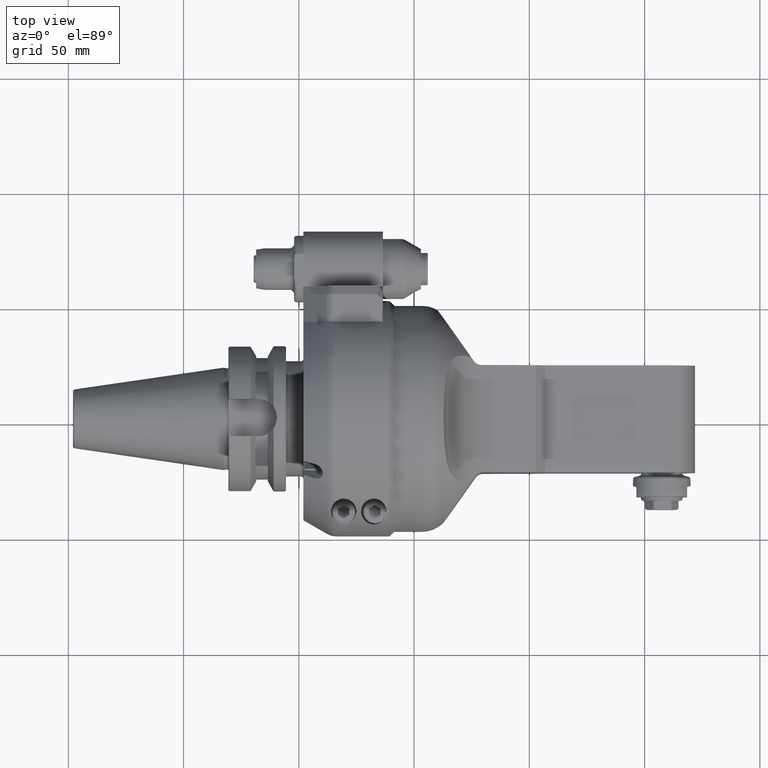
[diagram: clean part render]
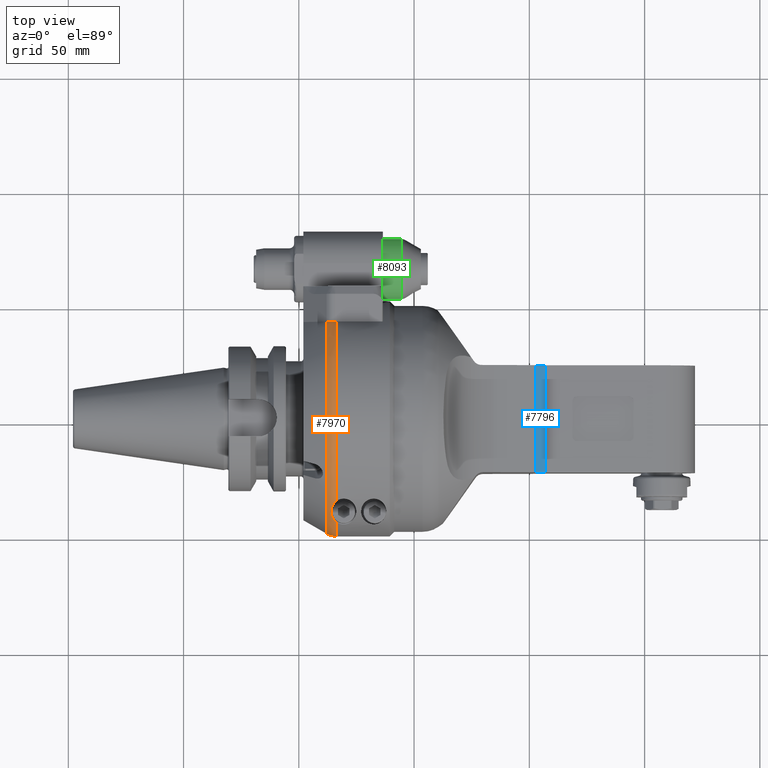
[diagram: same view with three faces highlighted in distinct colors, each labeled with its STEP entity id]
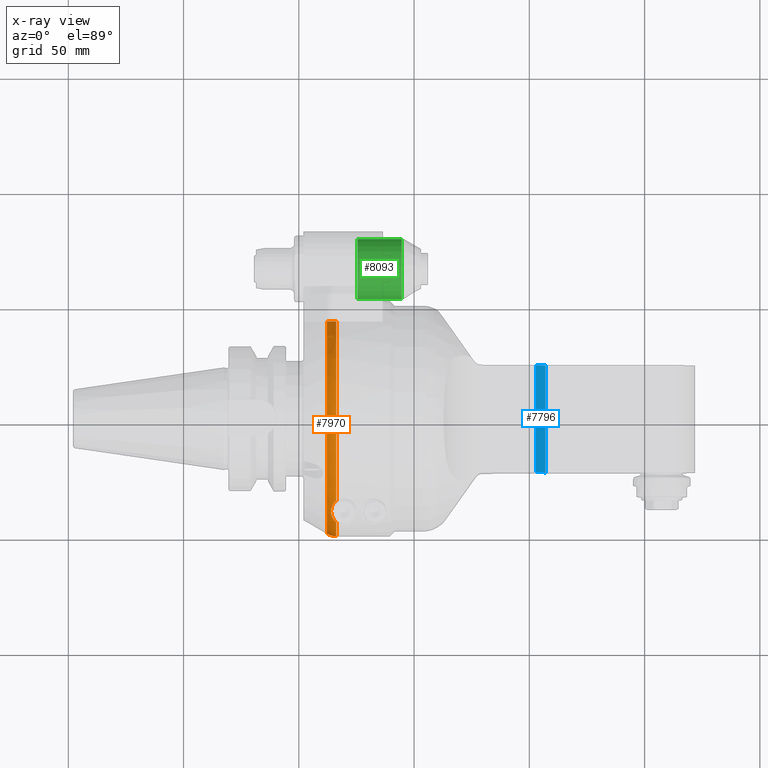
[diagram: x-ray of the same camera — body ghosted, the three highlighted faces saturated]
A machine part, top view with three faces highlighted in distinct colors.
The next image is the same camera in x-ray (body ghosted, the three faces saturated) — at least one of them is partly hidden behind the body in this view.
Their STEP definitions:

[orange] entity #7970 — the highlighted toroidal blend (fillet) surface has major radius 43 mm and minor (blend) radius 8 mm.
#166=TOROIDAL_SURFACE('',#8705,1.69291338582677,0.31496062992126);
#298=B_SPLINE_CURVE_WITH_KNOTS('',3,(#12567,#12568,#12569,#12570,#12571,
#12572,#12573,#12574,#12575,#12576),.UNSPECIFIED.,.F.,.F.,(4,2,2,2,4),(-9.68559804021147,
-9.63577634006454,-9.4843525606202,-9.37005770955715,-9.2557628584941),
 .UNSPECIFIED.);
#313=B_SPLINE_CURVE_WITH_KNOTS('',3,(#12886,#12887,#12888,#12889,#12890,
#12891,#12892,#12893),.UNSPECIFIED.,.F.,.F.,(4,2,2,4),(4.34441023881693,
4.44441523838835,4.59248867498487,4.74056211158139),.UNSPECIFIED.);
#316=B_SPLINE_CURVE_WITH_KNOTS('',3,(#12925,#12926,#12927,#12928,#12929,
#12930,#12931,#12932,#12933,#12934,#12935,#12936,#12937,#12938,#12939,#12940),
 .UNSPECIFIED.,.F.,.F.,(4,3,3,3,3,4),(-9.34472443709596,-9.15576581563747,
-8.53592281537668,-8.19749167718073,-7.91960616501336,-7.85473194545352),
 .UNSPECIFIED.);
#759=CIRCLE('',#8659,2.00787401574803);
#760=CIRCLE('',#8660,2.00787401574803);
#781=CIRCLE('',#8702,1.96567729253071);
#1181=FACE_OUTER_BOUND('',#1712,.T.);
#1712=EDGE_LOOP('',(#6079,#6080,#6081,#6082,#6083,#6084));
#3461=VERTEX_POINT('',#12532);
#3471=VERTEX_POINT('',#12563);
#3476=VERTEX_POINT('',#12587);
#3478=VERTEX_POINT('',#12596);
#3479=VERTEX_POINT('',#12623);
#3519=VERTEX_POINT('',#12874);
#4380=EDGE_CURVE('',#3471,#3461,#298,.T.);
#4386=EDGE_CURVE('',#3476,#3461,#759,.T.);
#4389=EDGE_CURVE('',#3479,#3478,#760,.T.);
#4452=EDGE_CURVE('',#3519,#3479,#313,.T.);
#4455=EDGE_CURVE('',#3471,#3519,#781,.T.);
#4460=EDGE_CURVE('',#3478,#3476,#316,.T.);
#6079=ORIENTED_EDGE('',*,*,#4455,.T.);
#6080=ORIENTED_EDGE('',*,*,#4452,.T.);
#6081=ORIENTED_EDGE('',*,*,#4389,.T.);
#6082=ORIENTED_EDGE('',*,*,#4460,.T.);
#6083=ORIENTED_EDGE('',*,*,#4386,.T.);
#6084=ORIENTED_EDGE('',*,*,#4380,.F.);
#7970=ADVANCED_FACE('',(#1181),#166,.T.);
#8659=AXIS2_PLACEMENT_3D('',#12588,#10077,#10078);
#8660=AXIS2_PLACEMENT_3D('',#12624,#10079,#10080);
#8702=AXIS2_PLACEMENT_3D('',#12899,#10193,#10194);
#8705=AXIS2_PLACEMENT_3D('',#12924,#10199,#10200);
#10077=DIRECTION('center_axis',(-1.,0.,0.));
#10078=DIRECTION('ref_axis',(0.,-0.711205879844998,0.702983781088798));
#10079=DIRECTION('center_axis',(-1.,0.,0.));
#10080=DIRECTION('ref_axis',(0.,-0.999567380468613,0.0294117647058804));
#10193=DIRECTION('center_axis',(1.,0.,0.));
#10194=DIRECTION('ref_axis',(0.,0.836200730225418,0.548423503116412));
#10199=DIRECTION('center_axis',(1.,0.,0.));
#10200=DIRECTION('ref_axis',(0.,-1.,0.));
#12532=CARTESIAN_POINT('',(-1.46582877195157,1.64370078740157,1.15317205334331));
#12563=CARTESIAN_POINT('',(-1.6233090869122,1.64370078740157,1.07802362676614));
#12567=CARTESIAN_POINT('Ctrl Pts',(-1.62330908691211,1.64370078740157,1.07802362676605));
#12568=CARTESIAN_POINT('Ctrl Pts',(-1.61844479811732,1.64370078740157,1.08314448396696));
#12569=CARTESIAN_POINT('Ctrl Pts',(-1.6133701282731,1.64370078740157,1.0881430546122));
#12570=CARTESIAN_POINT('Ctrl Pts',(-1.59217617864933,1.64370078740157,1.10752711173896));
#12571=CARTESIAN_POINT('Ctrl Pts',(-1.57453648292978,1.64370078740157,1.12016528790334));
#12572=CARTESIAN_POINT('Ctrl Pts',(-1.54377652648948,1.64370078740157,1.13659168315592));
#12573=CARTESIAN_POINT('Ctrl Pts',(-1.52857723870552,1.64370078740157,1.14286646758654));
#12574=CARTESIAN_POINT('Ctrl Pts',(-1.49710606867146,1.64370078740157,1.15116820495609));
#12575=CARTESIAN_POINT('Ctrl Pts',(-1.48082809623806,1.64370078740157,1.15317205334311));
#12576=CARTESIAN_POINT('Ctrl Pts',(-1.46582877195157,1.64370078740157,1.15317205334311));
#12587=CARTESIAN_POINT('',(-1.46582877195157,-1.4280118059878,1.41150286754055));
#12588=CARTESIAN_POINT('Origin',(-1.46582877195157,0.,0.));
#12596=CARTESIAN_POINT('',(-1.46582877195157,-1.77841742887008,0.932088789658661));
#12623=CARTESIAN_POINT('',(-1.46582877256313,-2.00700537025509,0.0590551173350001));
#12624=CARTESIAN_POINT('Origin',(-1.46582877195157,0.,0.));
#12874=CARTESIAN_POINT('',(-1.623309397991,-1.96478981189492,0.0590551208106137));
#12886=CARTESIAN_POINT('Ctrl Pts',(-1.62330939803413,-1.96478981196958,
0.0590551181102362));
#12887=CARTESIAN_POINT('Ctrl Pts',(-1.61102216001113,-1.97188707452034,
0.0590551181102362));
#12888=CARTESIAN_POINT('Ctrl Pts',(-1.59846317367425,-1.97800497155514,
0.0590551181102362));
#12889=CARTESIAN_POINT('Ctrl Pts',(-1.56838622305118,-1.99046630575466,
0.0590551181102362));
#12890=CARTESIAN_POINT('Ctrl Pts',(-1.54804600044294,-1.99681805304159,
0.0590551181102362));
#12891=CARTESIAN_POINT('Ctrl Pts',(-1.50648338128639,-2.00508759327977,
0.0590551181102362));
#12892=CARTESIAN_POINT('Ctrl Pts',(-1.48526098155487,-2.00700537023226,
0.0590551181102362));
#12893=CARTESIAN_POINT('Ctrl Pts',(-1.46582877195157,-2.00700537023226,
0.0590551181102362));
#12899=CARTESIAN_POINT('Origin',(-1.6233090869122,0.,0.));
#12924=CARTESIAN_POINT('Origin',(-1.46582877195157,0.,0.));
#12925=CARTESIAN_POINT('Ctrl Pts',(-1.46582877195168,-1.77841742887009,
0.932088789658589));
#12926=CARTESIAN_POINT('Ctrl Pts',(-1.48054930341502,-1.76772621834394,
0.952487527789942));
#12927=CARTESIAN_POINT('Ctrl Pts',(-1.4937797911866,-1.75526858026799,0.973181217539487));
#12928=CARTESIAN_POINT('Ctrl Pts',(-1.50518754077787,-1.74152735435471,
0.99435012990676));
#12929=CARTESIAN_POINT('Ctrl Pts',(-1.54260850457565,-1.69645186305608,
1.06379074104538));
#12930=CARTESIAN_POINT('Ctrl Pts',(-1.55871549308936,-1.64048402965276,
1.13698499966801));
#12931=CARTESIAN_POINT('Ctrl Pts',(-1.5544522691704,-1.58624661746564,1.21014018650565));
#12932=CARTESIAN_POINT('Ctrl Pts',(-1.55212457050692,-1.55663326516261,
1.25008254793585));
#12933=CARTESIAN_POINT('Ctrl Pts',(-1.54331168170186,-1.52624457201045,
1.29104939746526));
#12934=CARTESIAN_POINT('Ctrl Pts',(-1.52850020187301,-1.49920054345784,
1.32616116737055));
#12935=CARTESIAN_POINT('Ctrl Pts',(-1.51633850871399,-1.47699471521913,
1.35499141099188));
#12936=CARTESIAN_POINT('Ctrl Pts',(-1.50108795821596,-1.45763281716935,
1.37920586568197));
#12937=CARTESIAN_POINT('Ctrl Pts',(-1.48094826438231,-1.44005937432749,
1.39868832621365));
#12938=CARTESIAN_POINT('Ctrl Pts',(-1.47624651901444,-1.43595673730818,
1.4032366360994));
#12939=CARTESIAN_POINT('Ctrl Pts',(-1.47120338308217,-1.43191527232939,
1.40755374625425));
#12940=CARTESIAN_POINT('Ctrl Pts',(-1.46582877195141,-1.42801180598798,
1.41150286754051));

[blue] entity #7796 — the highlighted planar face has unit normal (-0.7071, -0, -0.7071).
#1007=FACE_OUTER_BOUND('',#1494,.T.);
#1494=EDGE_LOOP('',(#5242,#5243,#5244,#5245));
#2074=LINE('',#11618,#2646);
#2086=LINE('',#11711,#2658);
#2087=LINE('',#11714,#2659);
#2088=LINE('',#11715,#2660);
#2646=VECTOR('',#9267,0.229829280802859);
#2658=VECTOR('',#9295,1.83070866141732);
#2659=VECTOR('',#9298,1.83070866141732);
#2660=VECTOR('',#9299,0.229829280802859);
#3224=VERTEX_POINT('',#11615);
#3225=VERTEX_POINT('',#11617);
#3242=VERTEX_POINT('',#11709);
#3243=VERTEX_POINT('',#11713);
#4018=EDGE_CURVE('',#3224,#3225,#2074,.T.);
#4040=EDGE_CURVE('',#3224,#3242,#2086,.T.);
#4041=EDGE_CURVE('',#3225,#3243,#2087,.T.);
#4042=EDGE_CURVE('',#3243,#3242,#2088,.T.);
#5242=ORIENTED_EDGE('',*,*,#4041,.F.);
#5243=ORIENTED_EDGE('',*,*,#4018,.F.);
#5244=ORIENTED_EDGE('',*,*,#4040,.T.);
#5245=ORIENTED_EDGE('',*,*,#4042,.F.);
#7567=PLANE('',#8357);
#7796=ADVANCED_FACE('',(#1007),#7567,.F.);
#8357=AXIS2_PLACEMENT_3D('',#11712,#9296,#9297);
#9267=DIRECTION('',(0.707106781186548,0.,-0.707106781186548));
#9295=DIRECTION('',(0.,-1.,0.));
#9296=DIRECTION('center_axis',(-0.707106781186548,0.,-0.707106781186548));
#9297=DIRECTION('ref_axis',(-0.707106781186547,0.,0.707106781186547));
#9298=DIRECTION('',(0.,-1.,0.));
#9299=DIRECTION('',(-0.707106781186548,0.,0.707106781186548));
#11615=CARTESIAN_POINT('',(3.08551765309213,0.905511811023622,0.737924339501969));
#11617=CARTESIAN_POINT('',(3.24803149606299,0.905511811023622,0.575410496531102));
#11618=CARTESIAN_POINT('',(3.08551765309213,0.905511811023622,0.737924339501969));
#11709=CARTESIAN_POINT('',(3.08551765309213,-0.925196850393701,0.737924339501969));
#11711=CARTESIAN_POINT('',(3.08551765309213,0.905511811023622,0.737924339501969));
#11712=CARTESIAN_POINT('Origin',(3.16677457457756,-0.00984251968503937,
0.656667418016535));
#11713=CARTESIAN_POINT('',(3.24803149606299,-0.925196850393701,0.575410496531102));
#11714=CARTESIAN_POINT('',(3.24803149606299,0.905511811023622,0.575410496531102));
#11715=CARTESIAN_POINT('',(3.24803149606299,-0.925196850393701,0.575410496531102));

[green] entity #8093 — the highlighted cylindrical surface (bore or boss wall) has radius 13 mm, axis along (1, 0, 0).
#568=CYLINDRICAL_SURFACE('',#8903,0.511811023622047);
#858=CIRCLE('',#8902,0.511811023622047);
#859=CIRCLE('',#8904,0.511811023622047);
#860=CIRCLE('',#8905,0.511811023622047);
#1304=FACE_OUTER_BOUND('',#1852,.T.);
#1852=EDGE_LOOP('',(#6689,#6690,#6691,#6692,#6693));
#2457=LINE('',#13755,#3029);
#3029=VECTOR('',#10764,0.511811023622047);
#3708=VERTEX_POINT('',#13748);
#3709=VERTEX_POINT('',#13751);
#3710=VERTEX_POINT('',#13752);
#4746=EDGE_CURVE('',#3708,#3708,#858,.T.);
#4747=EDGE_CURVE('',#3709,#3710,#859,.T.);
#4748=EDGE_CURVE('',#3710,#3709,#860,.T.);
#4749=EDGE_CURVE('',#3710,#3708,#2457,.T.);
#6689=ORIENTED_EDGE('',*,*,#4747,.F.);
#6690=ORIENTED_EDGE('',*,*,#4748,.F.);
#6691=ORIENTED_EDGE('',*,*,#4749,.T.);
#6692=ORIENTED_EDGE('',*,*,#4746,.F.);
#6693=ORIENTED_EDGE('',*,*,#4749,.F.);
#8093=ADVANCED_FACE('',(#1304),#568,.T.);
#8902=AXIS2_PLACEMENT_3D('',#13749,#10756,#10757);
#8903=AXIS2_PLACEMENT_3D('',#13750,#10758,#10759);
#8904=AXIS2_PLACEMENT_3D('',#13753,#10760,#10761);
#8905=AXIS2_PLACEMENT_3D('',#13754,#10762,#10763);
#10756=DIRECTION('center_axis',(-1.,0.,0.));
#10757=DIRECTION('ref_axis',(0.,1.,0.));
#10758=DIRECTION('center_axis',(1.,0.,0.));
#10759=DIRECTION('ref_axis',(0.,1.,0.));
#10760=DIRECTION('center_axis',(1.,0.,0.));
#10761=DIRECTION('ref_axis',(0.,-1.,0.));
#10762=DIRECTION('center_axis',(1.,0.,0.));
#10763=DIRECTION('ref_axis',(0.,-1.,0.));
#10764=DIRECTION('',(-1.,0.,0.));
#13748=CARTESIAN_POINT('',(-1.10236220472441,2.04724409448819,-6.26787731847071E-17));
#13749=CARTESIAN_POINT('Origin',(-1.10236220472441,2.55905511811024,0.));
#13750=CARTESIAN_POINT('Origin',(-0.669291338582677,2.55905511811024,0.));
#13751=CARTESIAN_POINT('',(-0.34660817233437,3.07086614173228,0.));
#13752=CARTESIAN_POINT('',(-0.34660817233437,2.04724409448819,-6.26787731847071E-17));
#13753=CARTESIAN_POINT('Origin',(-0.34660817233437,2.55905511811024,0.));
#13754=CARTESIAN_POINT('Origin',(-0.34660817233437,2.55905511811024,0.));
#13755=CARTESIAN_POINT('',(-0.669291338582677,2.04724409448819,-6.26787731847071E-17));